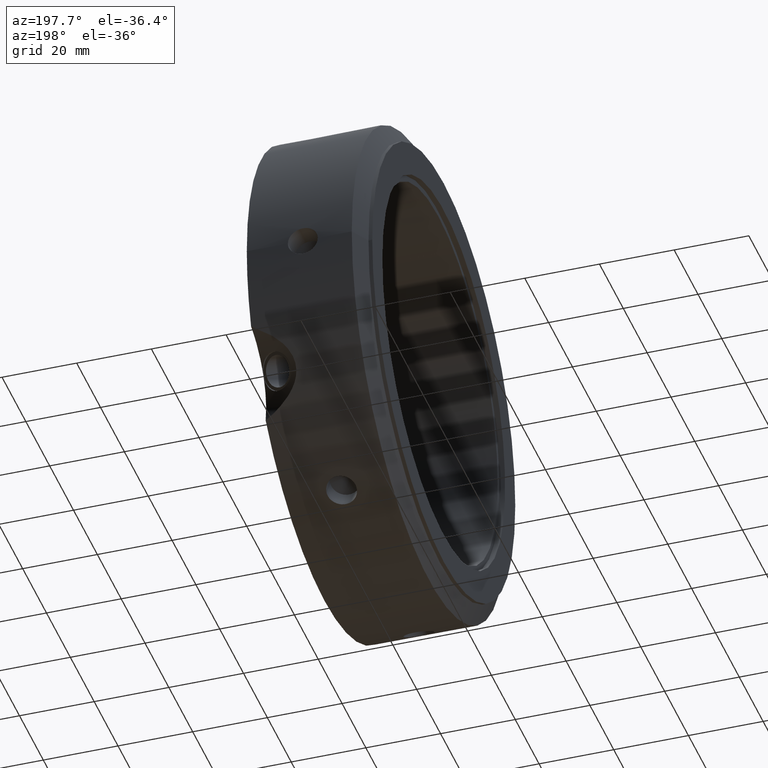
[diagram: clean part render]
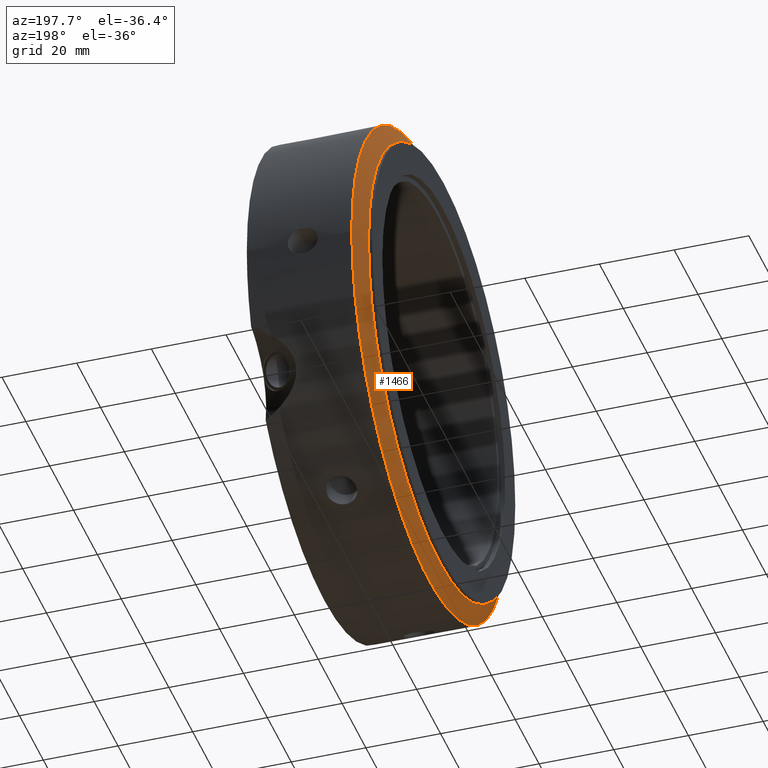
[diagram: same view with one face highlighted and labeled with its STEP entity id]
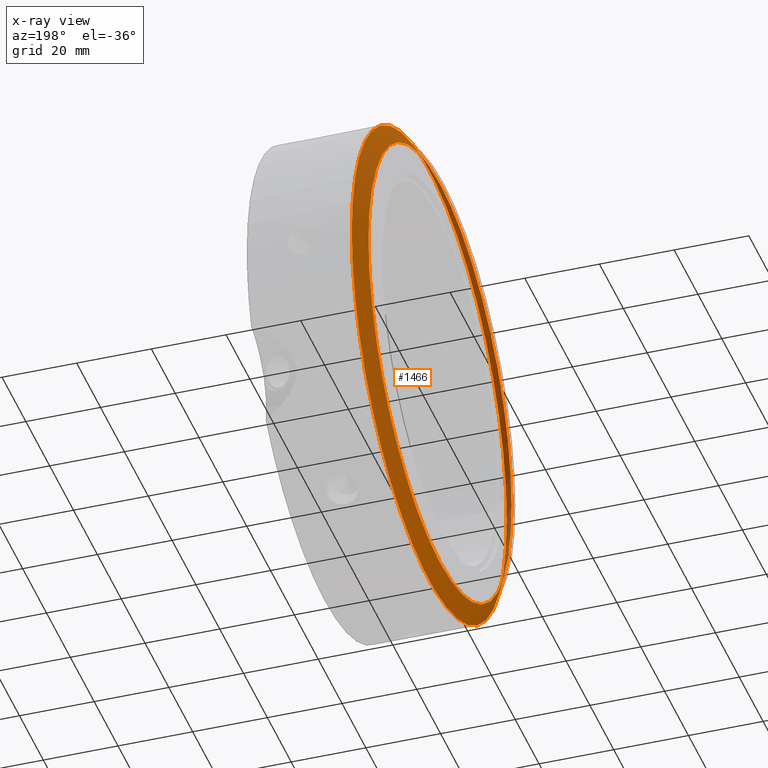
[diagram: x-ray of the same camera — body ghosted, the highlighted face saturated]
A machine part, auxiliary view. The second image highlights one B-rep face of the part: STEP entity #1466.
The next image is the same camera in x-ray: the body ghosted, the highlighted face saturated — about 0% of this face is hidden behind the body in this view.
In plain terms, the highlighted conical surface has half-angle 60 deg.
Its self-contained STEP definition (entity closure, byte-faithful):
#1087=CARTESIAN_POINT('',(3.886751345948105,65.0,0.0));
#1088=VERTEX_POINT('',#1087);
#1089=CARTESIAN_POINT('',(3.886751345948105,0.0,0.0));
#1090=DIRECTION('',(1.0,0.0,0.0));
#1091=DIRECTION('',(0.0,1.0,0.0));
#1092=AXIS2_PLACEMENT_3D('',#1089,#1090,#1091);
#1093=CIRCLE('',#1092,65.0);
#1094=EDGE_CURVE('',#1088,#1088,#1093,.T.);
#1440=CARTESIAN_POINT('',(0.999999999999982,60.0,0.0));
#1441=VERTEX_POINT('',#1440);
#1442=CARTESIAN_POINT('',(0.999999999999982,0.0,0.0));
#1443=DIRECTION('',(1.0,0.0,0.0));
#1444=DIRECTION('',(0.0,1.0,0.0));
#1445=AXIS2_PLACEMENT_3D('',#1442,#1443,#1444);
#1446=CIRCLE('',#1445,60.0);
#1447=EDGE_CURVE('',#1441,#1441,#1446,.T.);
#1455=CARTESIAN_POINT('',(2.443375672974044,0.0,0.0));
#1456=DIRECTION('',(1.0,0.0,0.0));
#1457=DIRECTION('',(0.0,1.0,0.0));
#1458=AXIS2_PLACEMENT_3D('',#1455,#1456,#1457);
#1459=CONICAL_SURFACE('',#1458,62.5,60.000000000000057);
#1460=ORIENTED_EDGE('',*,*,#1094,.F.);
#1461=EDGE_LOOP('',(#1460));
#1462=FACE_OUTER_BOUND('',#1461,.T.);
#1463=ORIENTED_EDGE('',*,*,#1447,.T.);
#1464=EDGE_LOOP('',(#1463));
#1465=FACE_BOUND('',#1464,.T.);
#1466=ADVANCED_FACE('',(#1462,#1465),#1459,.T.);